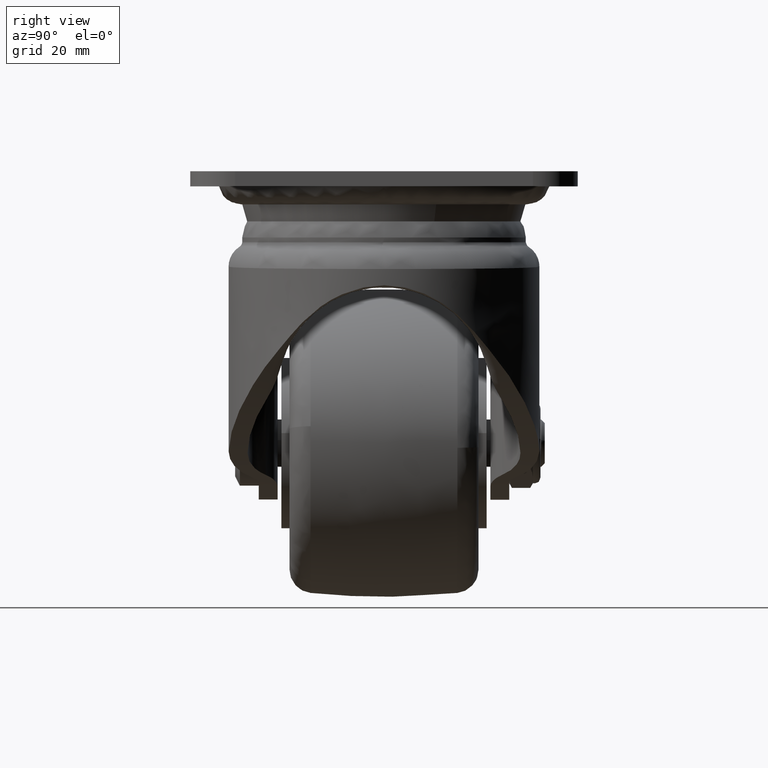
[diagram: clean part render]
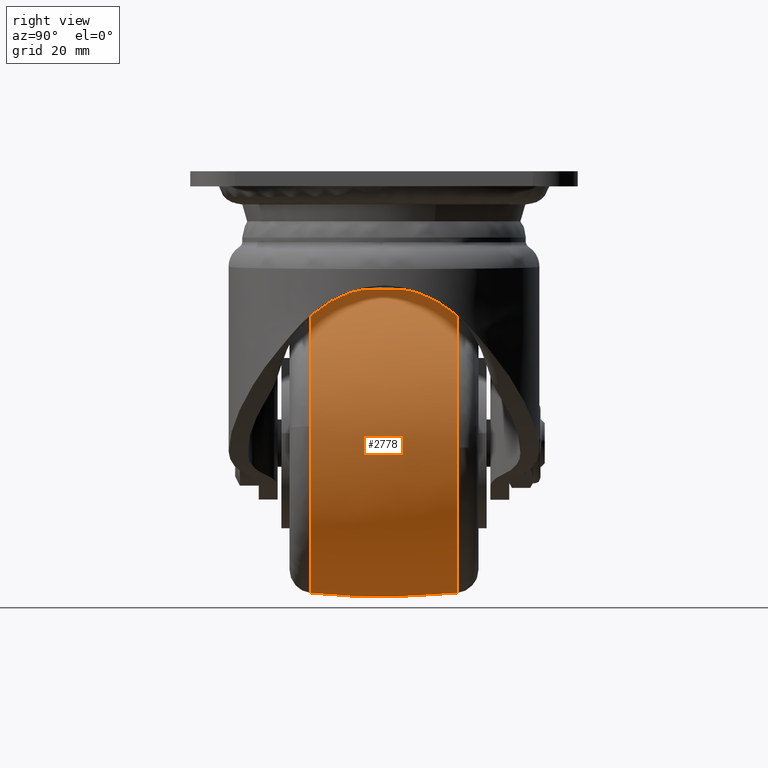
[diagram: same view with one face highlighted and labeled with its STEP entity id]
A machine part, right view. The second image highlights one B-rep face of the part: STEP entity #2778.
In plain terms, the highlighted face is a freeform B-spline surface patch.
Its self-contained STEP definition (entity closure, byte-faithful):
#2295=CARTESIAN_POINT('',(31.680247499074412,15.517244009141869,-58.474191717110287));
#2296=VERTEX_POINT('',#2295);
#2310=CARTESIAN_POINT('',(0.0,15.517246504561850,-89.195224658554821));
#2311=VERTEX_POINT('',#2310);
#2312=CARTESIAN_POINT('',(31.680247499074408,15.517244009141869,-58.474191717110287));
#2313=CARTESIAN_POINT('',(30.735553415805661,15.517246369341187,-89.195224618591340));
#2314=CARTESIAN_POINT('',(0.0,15.517246504561850,-89.195224658554821));
#2322=(BOUNDED_CURVE()B_SPLINE_CURVE(2,(#2312,#2313,#2314),.UNSPECIFIED.,.F.,.U.)B_SPLINE_CURVE_WITH_KNOTS((3,3),(0.255400349746240,0.500000000000000),.UNSPECIFIED.)CURVE()GEOMETRIC_REPRESENTATION_ITEM()RATIONAL_B_SPLINE_CURVE((0.987619533365006,0.713433684466126,1.0))REPRESENTATION_ITEM(''));
#2323=EDGE_CURVE('',#2296,#2311,#2322,.T.);
#2325=CARTESIAN_POINT('',(-31.483239876195750,15.517261947292409,-61.159613536615502));
#2326=VERTEX_POINT('',#2325);
#2340=CARTESIAN_POINT('',(-31.572674686826758,15.517259675710109,-54.715536927853229));
#2341=VERTEX_POINT('',#2340);
#2342=CARTESIAN_POINT('',(-31.483239876195750,15.517261947292416,-61.159613536615495));
#2343=CARTESIAN_POINT('',(-31.695222413474166,15.517261356867531,-59.335946281442354));
#2344=CARTESIAN_POINT('',(-31.695221763597161,15.517260702526681,-57.499999897468378));
#2345=CARTESIAN_POINT('',(-31.695221269829073,15.517260205367029,-56.105071744487340));
#2346=CARTESIAN_POINT('',(-31.572674686826755,15.517259675710108,-54.715536927853229));
#2354=(BOUNDED_CURVE()B_SPLINE_CURVE(2,(#2342,#2343,#2344,#2345,#2346),.UNSPECIFIED.,.F.,.U.)B_SPLINE_CURVE_WITH_KNOTS((3,2,3),(0.730000273836047,0.750000000000000,0.765281543100479),.UNSPECIFIED.)CURVE()GEOMETRIC_REPRESENTATION_ITEM()RATIONAL_B_SPLINE_CURVE((0.956886657167089,0.976568863313808,1.0,0.982096558611456,0.966381854912720))REPRESENTATION_ITEM(''));
#2355=EDGE_CURVE('',#2326,#2341,#2354,.T.);
#2444=CARTESIAN_POINT('',(0.0,15.517241913492301,-25.804774863944900));
#2445=VERTEX_POINT('',#2444);
#2446=CARTESIAN_POINT('',(-31.572674686826758,15.517259675710113,-54.715536927853236));
#2447=CARTESIAN_POINT('',(-29.022974110079677,15.517249951333472,-25.804774875739319));
#2448=CARTESIAN_POINT('',(0.0,15.517241913492301,-25.804774863944900));
#2456=(BOUNDED_CURVE()B_SPLINE_CURVE(2,(#2446,#2447,#2448),.UNSPECIFIED.,.F.,.U.)B_SPLINE_CURVE_WITH_KNOTS((3,3),(0.765281543100479,1.0),.UNSPECIFIED.)CURVE()GEOMETRIC_REPRESENTATION_ITEM()RATIONAL_B_SPLINE_CURVE((0.966381854912721,0.725010222575091,1.0))REPRESENTATION_ITEM(''));
#2457=EDGE_CURVE('',#2341,#2445,#2456,.T.);
#2459=CARTESIAN_POINT('',(0.0,15.517241913492301,-25.804774863944900));
#2460=CARTESIAN_POINT('',(31.695223875811251,15.517241782365863,-25.804774825191437));
#2461=CARTESIAN_POINT('',(31.695222576218249,15.517243942679981,-57.499999682532923));
#2462=CARTESIAN_POINT('',(31.695222556241227,15.517243975887785,-57.987210796089698));
#2463=CARTESIAN_POINT('',(31.680247499074408,15.517244009141869,-58.474191717110287));
#2471=(BOUNDED_CURVE()B_SPLINE_CURVE(2,(#2459,#2460,#2461,#2462,#2463),.UNSPECIFIED.,.F.,.U.)B_SPLINE_CURVE_WITH_KNOTS((3,2,3),(0.0,0.250000000000000,0.255400349746240),.UNSPECIFIED.)CURVE()GEOMETRIC_REPRESENTATION_ITEM()RATIONAL_B_SPLINE_CURVE((1.0,0.707106781186547,1.0,0.993673096720421,0.987619533365006))REPRESENTATION_ITEM(''));
#2472=EDGE_CURVE('',#2445,#2296,#2471,.T.);
#2513=CARTESIAN_POINT('',(12.672070466220630,-15.517241532981410,-86.551775262225192));
#2514=VERTEX_POINT('',#2513);
#2515=CARTESIAN_POINT('',(0.0,-15.517241598101750,-89.195221404938138));
#2516=VERTEX_POINT('',#2515);
#2517=CARTESIAN_POINT('',(12.672070466220628,-15.517241532981414,-86.551775262225192));
#2518=CARTESIAN_POINT('',(6.611752104166219,-15.517241598101755,-89.195221404938138));
#2519=CARTESIAN_POINT('',(0.0,-15.517241598101750,-89.195221404938138));
#2527=(BOUNDED_CURVE()B_SPLINE_CURVE(2,(#2517,#2518,#2519),.UNSPECIFIED.,.F.,.U.)B_SPLINE_CURVE_WITH_KNOTS((3,3),(0.432113192534791,0.500000000000000),.UNSPECIFIED.)CURVE()GEOMETRIC_REPRESENTATION_ITEM()RATIONAL_B_SPLINE_CURVE((0.884125976186298,0.920465657786184,1.0))REPRESENTATION_ITEM(''));
#2528=EDGE_CURVE('',#2514,#2516,#2527,.T.);
#2592=CARTESIAN_POINT('',(31.492729215947470,-15.517241489085290,-53.922992037750248));
#2593=VERTEX_POINT('',#2592);
#2607=CARTESIAN_POINT('',(0.0,-15.517241397116351,-25.804779828797962));
#2608=VERTEX_POINT('',#2607);
#2609=CARTESIAN_POINT('',(0.0,-15.517241397116351,-25.804779828797962));
#2610=CARTESIAN_POINT('',(28.299005276726682,-15.517241397116345,-25.804779828797948));
#2611=CARTESIAN_POINT('',(31.492729215947470,-15.517241489085297,-53.922992037750248));
#2619=(BOUNDED_CURVE()B_SPLINE_CURVE(2,(#2609,#2610,#2611),.UNSPECIFIED.,.F.,.U.)B_SPLINE_CURVE_WITH_KNOTS((3,3),(0.0,0.230444233652008),.UNSPECIFIED.)CURVE()GEOMETRIC_REPRESENTATION_ITEM()RATIONAL_B_SPLINE_CURVE((1.0,0.730017786594656,0.957762327332252))REPRESENTATION_ITEM(''));
#2620=EDGE_CURVE('',#2608,#2593,#2619,.T.);
#2622=CARTESIAN_POINT('',(-31.483237938265621,-15.517256669648710,-61.159613230009029));
#2623=VERTEX_POINT('',#2622);
#2624=CARTESIAN_POINT('',(-31.483237938265628,-15.517256669648713,-61.159613230009029));
#2625=CARTESIAN_POINT('',(-31.695221062251296,-15.517256275756123,-59.335946228994970));
#2626=CARTESIAN_POINT('',(-31.695221035761062,-15.517255833425290,-57.500000100496379));
#2627=CARTESIAN_POINT('',(-31.695220578441766,-15.517248197159114,-25.804779876135512));
#2628=CARTESIAN_POINT('',(0.0,-15.517241397116351,-25.804779828797962));
#2636=(BOUNDED_CURVE()B_SPLINE_CURVE(2,(#2624,#2625,#2626,#2627,#2628),.UNSPECIFIED.,.F.,.U.)B_SPLINE_CURVE_WITH_KNOTS((3,2,3),(0.730000274267257,0.750000000000000,1.0),.UNSPECIFIED.)CURVE()GEOMETRIC_REPRESENTATION_ITEM()RATIONAL_B_SPLINE_CURVE((0.956886658015817,0.976568863819002,1.0,0.707106781186548,1.0))REPRESENTATION_ITEM(''));
#2637=EDGE_CURVE('',#2623,#2608,#2636,.T.);
#2672=CARTESIAN_POINT('',(31.492729215947470,-15.517241489085297,-53.922992037750248));
#2673=CARTESIAN_POINT('',(31.695220171202056,-15.517241491920258,-55.705764919674863));
#2674=CARTESIAN_POINT('',(31.695220171202049,-15.517241497609049,-57.500000616868050));
#2675=CARTESIAN_POINT('',(31.695220171202056,-15.517241563411842,-78.254083001667055));
#2676=CARTESIAN_POINT('',(12.672070466220635,-15.517241532981409,-86.551775262225192));
#2684=(BOUNDED_CURVE()B_SPLINE_CURVE(2,(#2672,#2673,#2674,#2675,#2676),.UNSPECIFIED.,.F.,.U.)B_SPLINE_CURVE_WITH_KNOTS((3,2,3),(0.230444233652008,0.250000000000000,0.432113192534791),.UNSPECIFIED.)CURVE()GEOMETRIC_REPRESENTATION_ITEM()RATIONAL_B_SPLINE_CURVE((0.957762327332252,0.977088994591892,1.0,0.786641123400365,0.884125976186298))REPRESENTATION_ITEM(''));
#2685=EDGE_CURVE('',#2593,#2514,#2684,.T.);
#2707=CARTESIAN_POINT('',(-31.316080830594672,17.057838752804333,-61.140233557958126));
#2708=CARTESIAN_POINT('',(-33.255486134399156,0.000006253118764,-61.365673270787511));
#2709=CARTESIAN_POINT('',(-31.316082234113768,-17.057826408297270,-61.140233721105538));
#2710=CARTESIAN_POINT('',(-31.526944332504282,17.057838752804329,-59.326223999261714));
#2711=CARTESIAN_POINT('',(-33.479408415796364,0.000006253118765,-59.439322075910027));
#2712=CARTESIAN_POINT('',(-31.526945745473832,-17.057826408297274,-59.326224081109125));
#2713=CARTESIAN_POINT('',(-31.526944332504272,17.057838752804336,-57.500000000000007));
#2714=CARTESIAN_POINT('',(-33.479408415796350,0.000006253118766,-57.500000000000000));
#2715=CARTESIAN_POINT('',(-31.526945745473824,-17.057826408297274,-57.499999999999986));
#2716=CARTESIAN_POINT('',(-31.526944332504289,17.057838752804329,-25.973055667495718));
#2717=CARTESIAN_POINT('',(-33.479408415796357,0.000006253118766,-24.020591584203633));
#2718=CARTESIAN_POINT('',(-31.526945745473824,-17.057826408297281,-25.973054254526165));
#2719=CARTESIAN_POINT('',(0.0,17.057838752804336,-25.973055667495728));
#2720=CARTESIAN_POINT('',(0.0,0.000006253118766,-24.020591584203654));
#2721=CARTESIAN_POINT('',(0.0,-17.057826408297274,-25.973054254526183));
#2722=CARTESIAN_POINT('',(31.526944332504272,17.057838752804329,-25.973055667495707));
#2723=CARTESIAN_POINT('',(33.479408415796357,0.000006253118766,-24.020591584203633));
#2724=CARTESIAN_POINT('',(31.526945745473824,-17.057826408297281,-25.973054254526165));
#2725=CARTESIAN_POINT('',(31.526944332504272,17.057838752804336,-57.500000000000007));
#2726=CARTESIAN_POINT('',(33.479408415796350,0.000006253118766,-57.500000000000000));
#2727=CARTESIAN_POINT('',(31.526945745473824,-17.057826408297274,-57.499999999999986));
#2728=CARTESIAN_POINT('',(31.526944332504289,17.057838752804329,-89.026944332504272));
#2729=CARTESIAN_POINT('',(33.479408415796357,0.000006253118766,-90.979408415796343));
#2730=CARTESIAN_POINT('',(31.526945745473824,-17.057826408297281,-89.026945745473824));
#2731=CARTESIAN_POINT('',(0.0,17.057838752804336,-89.026944332504272));
#2732=CARTESIAN_POINT('',(0.0,0.000006253118766,-90.979408415796357));
#2733=CARTESIAN_POINT('',(0.0,-17.057826408297274,-89.026945745473824));
#2741=(BOUNDED_SURFACE()B_SPLINE_SURFACE(2,2,((#2707,#2710,#2713,#2716,#2719,#2722,#2725,#2728,#2731),(#2708,#2711,#2714,#2717,#2720,#2723,#2726,#2729,#2732),(#2709,#2712,#2715,#2718,#2721,#2724,#2727,#2730,#2733)),.UNSPECIFIED.,.F.,.F.,.U.)B_SPLINE_SURFACE_WITH_KNOTS((3,3),(3,2,2,2,3),(0.0,34.226679963559867),(0.0,4.307820149998674,58.155583258500862,112.003346367003100,165.851109475505210),.UNSPECIFIED.)GEOMETRIC_REPRESENTATION_ITEM()RATIONAL_B_SPLINE_SURFACE(((0.855999914603439,0.873607182817957,0.894568215573752,0.632555251466149,0.894568215573752,0.632555251466149,0.894568215573752,0.632555251466149,0.894568215573752),(0.850447012837298,0.867940062079246,0.888765119873100,0.628451843144344,0.888765119873100,0.628451843144344,0.888765119873100,0.628451843144344,0.888765119873100),(0.855999910558647,0.873607178689967,0.894568211346716,0.632555248477184,0.894568211346716,0.632555248477184,0.894568211346716,0.632555248477184,0.894568211346716)))REPRESENTATION_ITEM('')SURFACE());
#2742=ORIENTED_EDGE('',*,*,#2457,.F.);
#2743=ORIENTED_EDGE('',*,*,#2355,.F.);
#2744=CARTESIAN_POINT('',(-31.483239876195753,15.517261947292406,-61.159613536615502));
#2745=CARTESIAN_POINT('',(-33.086339032080382,0.000002665970412,-61.345960460324577));
#2746=CARTESIAN_POINT('',(-31.483237938265624,-15.517256669648710,-61.159613230009029));
#2754=(BOUNDED_CURVE()B_SPLINE_CURVE(2,(#2744,#2745,#2746),.UNSPECIFIED.,.F.,.U.)B_SPLINE_CURVE_WITH_KNOTS((3,3),(0.425603817134385,0.574396158670454),.UNSPECIFIED.)CURVE()GEOMETRIC_REPRESENTATION_ITEM()RATIONAL_B_SPLINE_CURVE((0.855518460504172,0.850928451015554,0.855518459011407))REPRESENTATION_ITEM(''));
#2755=EDGE_CURVE('',#2326,#2623,#2754,.T.);
#2756=ORIENTED_EDGE('',*,*,#2755,.T.);
#2757=ORIENTED_EDGE('',*,*,#2637,.T.);
#2758=ORIENTED_EDGE('',*,*,#2620,.T.);
#2759=ORIENTED_EDGE('',*,*,#2685,.T.);
#2760=ORIENTED_EDGE('',*,*,#2528,.T.);
#2761=CARTESIAN_POINT('',(0.0,15.517246504561852,-89.195224658554821));
#2762=CARTESIAN_POINT('',(0.0,0.000002477672730,-90.809114288185242));
#2763=CARTESIAN_POINT('',(0.0,-15.517241598101757,-89.195221404938138));
#2771=(BOUNDED_CURVE()B_SPLINE_CURVE(2,(#2761,#2762,#2763),.UNSPECIFIED.,.F.,.U.)B_SPLINE_CURVE_WITH_KNOTS((3,3),(0.425603891572650,0.574396086643665),.UNSPECIFIED.)CURVE()GEOMETRIC_REPRESENTATION_ITEM()RATIONAL_B_SPLINE_CURVE((0.894065071744625,0.889268262290978,0.894065070340086))REPRESENTATION_ITEM(''));
#2772=EDGE_CURVE('',#2311,#2516,#2771,.T.);
#2773=ORIENTED_EDGE('',*,*,#2772,.F.);
#2774=ORIENTED_EDGE('',*,*,#2323,.F.);
#2775=ORIENTED_EDGE('',*,*,#2472,.F.);
#2776=EDGE_LOOP('',(#2742,#2743,#2756,#2757,#2758,#2759,#2760,#2773,#2774,#2775));
#2777=FACE_OUTER_BOUND('',#2776,.T.);
#2778=ADVANCED_FACE('',(#2777),#2741,.T.);